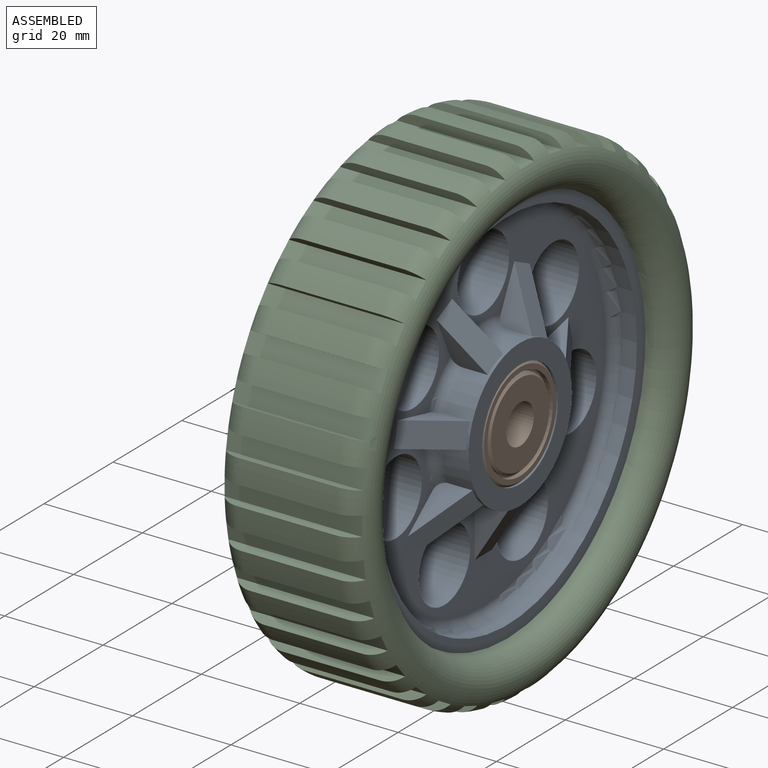
[diagram: assembled view]
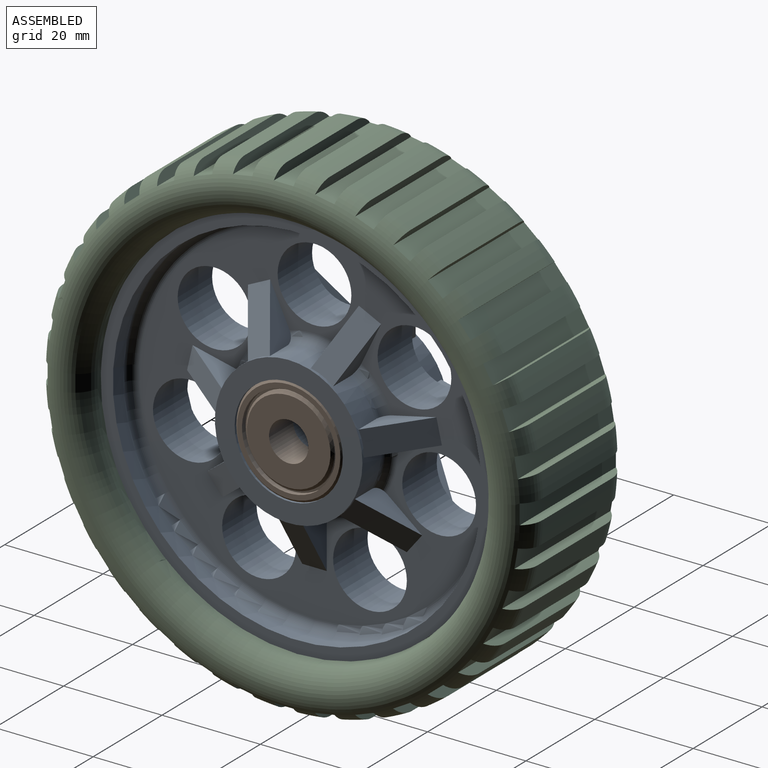
[diagram: assembled view, second angle]
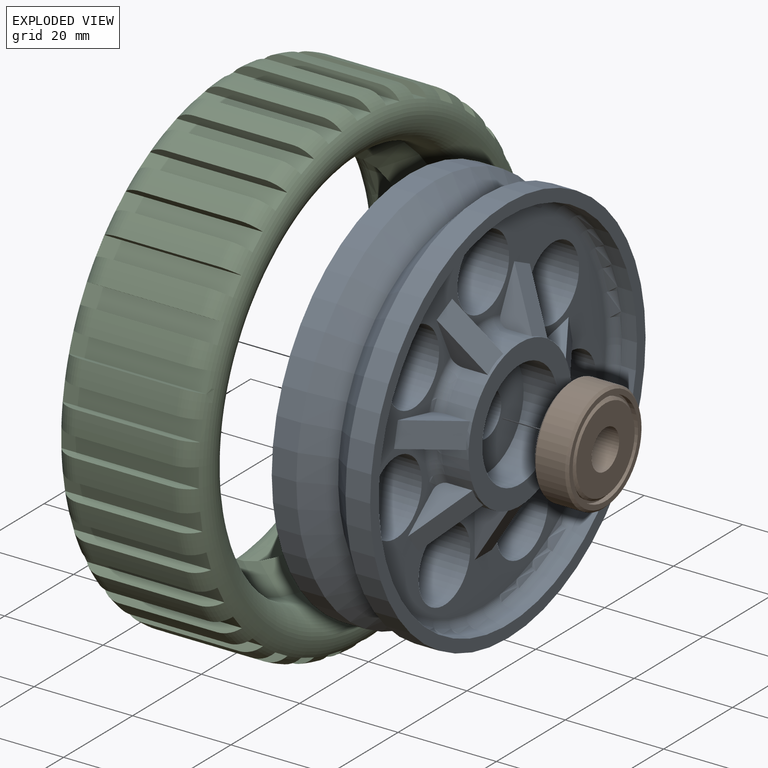
[diagram: exploded view]
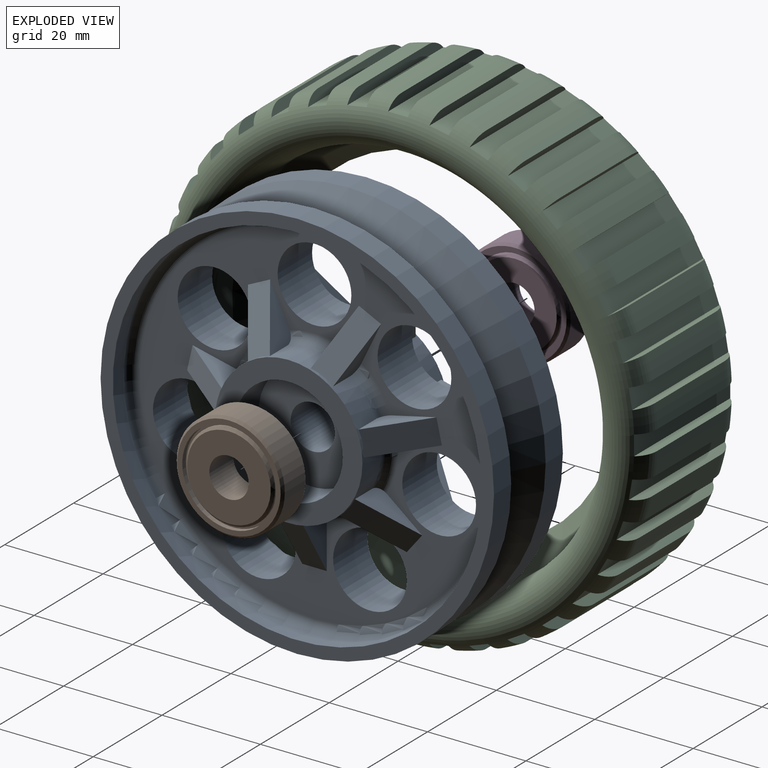
[diagram: exploded view, second angle]
ASSEMBLY  parts=4 mates=3
PART A: 84 faces, bbox 25x81.2x81.2 mm
  f0: plane 71x71mm, normal (-1,0,0), area 1497.1mm2, adj f3,f4,f5,f6,f7,f8,f9,f47
  f1: plane 71x71mm, normal (1,0,0), area 1497.1mm2, adj f3,f4,f5,f6,f7,f8,f9,f26
  f2: cylinder r=40mm len=80mm, axis (-1,0,0), area 1256.6mm2, adj f23,f24
  f3: cylinder r=7.5mm len=15mm, axis (-1,0,0), area 471.2mm2, adj f0,f1
  f4: cylinder r=7.5mm len=15mm, axis (-1,0,0), area 471.2mm2, adj f0,f1
  f5: cylinder r=7.5mm len=15mm, axis (-1,0,0), area 471.2mm2, adj f0,f1
  f6: cylinder r=7.5mm len=15mm, axis (-1,0,0), area 471.2mm2, adj f0,f1
  f7: cylinder r=7.5mm len=15mm, axis (-1,0,0), area 471.2mm2, adj f0,f1
  f8: cylinder r=7.5mm len=15mm, axis (-1,0,0), area 471.2mm2, adj f0,f1
  f9: cylinder r=7.5mm len=15mm, axis (-1,0,0), area 471.2mm2, adj f0,f1
  f10: cylinder r=15mm len=30mm, axis (-1,0,0), area 345.4mm2, adj f14,f26,f27,f28,f29,f30,f31,f32
  f11: cylinder r=11mm len=22mm, axis (-1,0,0), area 483.8mm2, adj f15,f18
  f12: cylinder r=11mm len=22mm, axis (-1,0,0), area 483.8mm2, adj f14,f17
  f13: cylinder r=15mm len=30mm, axis (-1,0,0), area 345.4mm2, adj f15,f47,f48,f49,f50,f51,f52,f53
  f14: plane 30x30mm, normal (1,0,0), area 326.7mm2, adj f10,f12
  f15: plane 30x30mm, normal (-1,0,0), area 326.7mm2, adj f11,f13
  f16: cylinder r=4.5mm len=11mm, axis (-1,0,0), area 311mm2, adj f17,f18
  f17: plane 22x22mm, normal (1,0,0), area 316.5mm2, adj f12,f16
  f18: plane 22x22mm, normal (-1,0,0), area 316.5mm2, adj f11,f16
  f19: cylinder r=37.5mm len=75mm, axis (-1,0,0), area 706.9mm2, adj f22,f80
  f20: cylinder r=37.5mm len=75mm, axis (-1,0,0), area 706.9mm2, adj f23,f82
  f21: cylinder r=40mm len=80mm, axis (-1,0,0), area 1256.6mm2, adj f22,f25
  f22: plane 80x80mm, normal (1,0,0), area 608.7mm2, adj f19,f21
  f23: plane 80x80mm, normal (-1,0,0), area 608.7mm2, adj f2,f20
  f24: cone r=35mm half-angle=45deg, axis (-1,0,0), area 1666.1mm2, adj f2,f25
  f25: cone r=40mm half-angle=45deg, axis (1,0,0), area 1666.1mm2, adj f21,f24
  f26: plane 11.21x7.01mm, normal (0.85,0,-0.53), area 65.3mm2, adj f1,f10,f27,f28
  f27: plane 11.21x7.01mm, normal (0,-1,0), area 38.4mm2, adj f1,f10,f26,f74
  f28: plane 11.21x7.01mm, normal (0,1,0), area 38.4mm2, adj f1,f10,f26,f83
  f29: plane 11.88x10.9mm, normal (0.85,0.41,-0.33), area 65.3mm2, adj f1,f10,f30,f31
  f30: plane 8.76x7.01mm, normal (0,-0.62,-0.78), area 38.4mm2, adj f1,f10,f29,f83
  f31: plane 8.76x7.01mm, normal (0,0.62,0.78), area 38.4mm2, adj f1,f10,f29,f79
  f32: plane 12.04x7.37mm, normal (0.85,0.52,0.12), area 65.3mm2, adj f1,f10,f33,f34
  f33: plane 10.93x7.01mm, normal (0,0.22,-0.97), area 38.4mm2, adj f1,f10,f32,f79
  f34: plane 10.93x7.01mm, normal (0,-0.22,0.97), area 38.4mm2, adj f1,f10,f32,f78
  f35: plane 12.27x9.37mm, normal (0.85,0.23,0.48), area 65.3mm2, adj f1,f10,f36,f37
  f36: plane 10.1x7.01mm, normal (0,0.9,-0.43), area 38.4mm2, adj f1,f10,f35,f78
  f37: plane 10.1x7.01mm, normal (0,-0.9,0.43), area 38.4mm2, adj f1,f10,f35,f77
  f38: plane 12.27x9.37mm, normal (0.85,-0.23,0.48), area 65.3mm2, adj f1,f10,f39,f40
  f39: plane 10.1x7.01mm, normal (0,0.9,0.43), area 38.4mm2, adj f1,f10,f38,f77
  f40: plane 10.1x7.01mm, normal (0,-0.9,-0.43), area 38.4mm2, adj f1,f10,f38,f76
  f41: plane 12.04x7.37mm, normal (0.85,-0.52,0.12), area 65.3mm2, adj f1,f10,f42,f43
  f42: plane 10.93x7.01mm, normal (0,0.22,0.97), area 38.4mm2, adj f1,f10,f41,f76
  f43: plane 10.93x7.01mm, normal (0,-0.22,-0.97), area 38.4mm2, adj f1,f10,f41,f75
  f44: plane 11.88x10.9mm, normal (0.85,-0.41,-0.33), area 65.3mm2, adj f1,f10,f45,f46
  f45: plane 8.76x7.01mm, normal (0,-0.62,0.78), area 38.4mm2, adj f1,f10,f44,f75
  f46: plane 8.76x7.01mm, normal (0,0.62,-0.78), area 38.4mm2, adj f1,f10,f44,f74
  f47: plane 11.21x7.01mm, normal (-0.85,0,-0.53), area 65.3mm2, adj f0,f13,f48,f49
  f48: plane 11.21x7.01mm, normal (0,-1,0), area 38.4mm2, adj f0,f13,f47,f68
  f49: plane 11.21x7.01mm, normal (0,1,0), area 38.4mm2, adj f0,f13,f47,f81
  f50: plane 11.88x10.9mm, normal (-0.85,0.41,-0.33), area 65.3mm2, adj f0,f13,f51,f52
  f51: plane 8.76x7.01mm, normal (0,-0.62,-0.78), area 38.4mm2, adj f0,f13,f50,f81
  f52: plane 8.76x7.01mm, normal (0,0.62,0.78), area 38.4mm2, adj f0,f13,f50,f73
  f53: plane 12.04x7.37mm, normal (-0.85,0.52,0.12), area 65.3mm2, adj f0,f13,f54,f55
  f54: plane 10.93x7.01mm, normal (0,0.22,-0.97), area 38.4mm2, adj f0,f13,f53,f73
  f55: plane 10.93x7.01mm, normal (0,-0.22,0.97), area 38.4mm2, adj f0,f13,f53,f72
  f56: plane 12.27x9.37mm, normal (-0.85,0.23,0.48), area 65.3mm2, adj f0,f13,f57,f58
  f57: plane 10.1x7.01mm, normal (0,0.9,-0.43), area 38.4mm2, adj f0,f13,f56,f72
  f58: plane 10.1x7.01mm, normal (0,-0.9,0.43), area 38.4mm2, adj f0,f13,f56,f71
  f59: plane 12.27x9.37mm, normal (-0.85,-0.23,0.48), area 65.3mm2, adj f0,f13,f60,f61
  f60: plane 10.1x7.01mm, normal (0,0.9,0.43), area 38.4mm2, adj f0,f13,f59,f71
  f61: plane 10.1x7.01mm, normal (0,-0.9,-0.43), area 38.4mm2, adj f0,f13,f59,f70
  f62: plane 12.04x7.37mm, normal (-0.85,-0.52,0.12), area 65.3mm2, adj f0,f13,f63,f64
  f63: plane 10.93x7.01mm, normal (0,0.22,0.97), area 38.4mm2, adj f0,f13,f62,f70
  f64: plane 10.93x7.01mm, normal (0,-0.22,-0.97), area 38.4mm2, adj f0,f13,f62,f69
  f65: plane 11.88x10.9mm, normal (-0.85,-0.41,-0.33), area 65.3mm2, adj f0,f13,f66,f67
  f66: plane 8.76x7.01mm, normal (0,-0.62,0.78), area 38.4mm2, adj f0,f13,f65,f69
  f67: plane 8.76x7.01mm, normal (0,0.62,-0.78), area 38.4mm2, adj f0,f13,f65,f68
  f68: torus R=17mm, axis (1,0,0), area 28.6mm2, adj f0,f13,f48,f67
  f69: torus R=17mm, axis (1,0,0), area 28.6mm2, adj f0,f13,f64,f66
  f70: torus R=17mm, axis (1,0,0), area 28.6mm2, adj f0,f13,f61,f63
  f71: torus R=17mm, axis (1,0,0), area 28.6mm2, adj f0,f13,f58,f60
  f72: torus R=17mm, axis (1,0,0), area 28.6mm2, adj f0,f13,f55,f57
  f73: torus R=17mm, axis (1,0,0), area 28.6mm2, adj f0,f13,f52,f54
  f74: torus R=17mm, axis (1,0,0), area 28.6mm2, adj f1,f10,f27,f46
  f75: torus R=17mm, axis (1,0,0), area 28.6mm2, adj f1,f10,f43,f45
  f76: torus R=17mm, axis (1,0,0), area 28.6mm2, adj f1,f10,f40,f42
  f77: torus R=17mm, axis (1,0,0), area 28.6mm2, adj f1,f10,f37,f39
  f78: torus R=17mm, axis (1,0,0), area 28.6mm2, adj f1,f10,f34,f36
  f79: torus R=17mm, axis (1,0,0), area 28.6mm2, adj f1,f10,f31,f33
  f80: torus R=35.5mm, axis (1,0,0), area 725.9mm2, adj f1,f19
  f81: torus R=17mm, axis (1,0,0), area 28.6mm2, adj f0,f13,f49,f51
  f82: torus R=35.5mm, axis (1,0,0), area 725.9mm2, adj f0,f20
  f83: torus R=17mm, axis (1,0,0), area 28.6mm2, adj f1,f10,f28,f30
PART B: 16 faces, bbox 22x22x7 mm
  f0: cone r=8.5mm half-angle=45deg, axis (0,0,1), area 38.9mm2, adj f1,f15
  f1: plane 17x17mm, normal (0,0,-1), area 176.7mm2, adj f0,f2
  f2: cylinder r=4mm len=8mm, axis (0,0,-1), area 175.9mm2, adj f1,f3
  f3: plane 17x17mm, normal (0,0,1), area 176.7mm2, adj f2,f4
  f4: cone r=8.5mm half-angle=45deg, axis (0,0,-1), area 38.9mm2, adj f3,f5
  f5: cylinder r=9mm len=18mm, axis (0,0,-1), area 28.3mm2, adj f4,f6
  f6: plane 19x19mm, normal (0,0,1), area 29.1mm2, adj f5,f7
  f7: cylinder r=9.5mm len=19mm, axis (0,0,-1), area 59.7mm2, adj f6,f8
  f8: plane 21x21mm, normal (0,0,1), area 62.8mm2, adj f7,f9
  f9: cone r=10.5mm half-angle=45deg, axis (0,0,-1), area 47.8mm2, adj f8,f10
  f10: cylinder r=11mm len=22mm, axis (0,0,-1), area 414.7mm2, adj f9,f11
  f11: cone r=10.5mm half-angle=45deg, axis (0,0,1), area 47.8mm2, adj f10,f12
  f12: plane 21x21mm, normal (0,0,-1), area 62.8mm2, adj f11,f13
  f13: cylinder r=9.5mm len=19mm, axis (0,0,-1), area 59.7mm2, adj f12,f14
  f14: plane 19x19mm, normal (0,0,-1), area 29.1mm2, adj f13,f15
  f15: cylinder r=9mm len=18mm, axis (0,0,-1), area 28.3mm2, adj f0,f14
PART C: 150 faces, bbox 30.1x108.3x108.3 mm
  f0: torus R=45mm, axis (1,0,0), area 3776.6mm2, adj f1,f2,f3,f4,f5,f6,f7,f8
  f1: cylinder r=50mm len=20mm, axis (1,0,0), area 94.5mm2, adj f0,f37,f144,f149
  f2: cylinder r=50mm len=20mm, axis (1,0,0), area 94.5mm2, adj f0,f37,f141,f146
  f3: cylinder r=50mm len=20mm, axis (1,0,0), area 94.5mm2, adj f0,f37,f138,f143
  f4: cylinder r=50mm len=20mm, axis (1,0,0), area 94.5mm2, adj f0,f37,f135,f140
  f5: cylinder r=50mm len=20mm, axis (1,0,0), area 94.5mm2, adj f0,f37,f132,f137
  f6: cylinder r=50mm len=20mm, axis (1,0,0), area 94.5mm2, adj f0,f37,f129,f134
  f7: cylinder r=50mm len=20mm, axis (1,0,0), area 94.5mm2, adj f0,f37,f126,f131
  f8: cylinder r=50mm len=20mm, axis (1,0,0), area 94.5mm2, adj f0,f37,f123,f128
  f9: cylinder r=50mm len=20mm, axis (1,0,0), area 94.5mm2, adj f0,f37,f120,f125
  f10: cylinder r=50mm len=20mm, axis (1,0,0), area 94.5mm2, adj f0,f37,f117,f122
  f11: cylinder r=50mm len=20mm, axis (1,0,0), area 94.5mm2, adj f0,f37,f114,f119
  f12: cylinder r=50mm len=20mm, axis (1,0,0), area 94.5mm2, adj f0,f37,f111,f116
  f13: cylinder r=50mm len=20mm, axis (1,0,0), area 94.5mm2, adj f0,f37,f108,f113
  f14: cylinder r=50mm len=20mm, axis (1,0,0), area 94.5mm2, adj f0,f37,f105,f110
  f15: cylinder r=50mm len=20mm, axis (1,0,0), area 94.5mm2, adj f0,f37,f102,f107
  f16: cylinder r=50mm len=20mm, axis (1,0,0), area 94.5mm2, adj f0,f37,f99,f104
  f17: cylinder r=50mm len=20mm, axis (1,0,0), area 94.5mm2, adj f0,f37,f96,f101
  f18: cylinder r=50mm len=20mm, axis (1,0,0), area 94.5mm2, adj f0,f37,f93,f98
  f19: cylinder r=50mm len=20mm, axis (1,0,0), area 94.5mm2, adj f0,f37,f90,f95
  f20: cylinder r=50mm len=20mm, axis (1,0,0), area 94.5mm2, adj f0,f37,f87,f92
  f21: cylinder r=50mm len=20mm, axis (1,0,0), area 94.5mm2, adj f0,f37,f84,f89
  f22: cylinder r=50mm len=20mm, axis (1,0,0), area 94.5mm2, adj f0,f37,f81,f86
  f23: cylinder r=50mm len=20mm, axis (1,0,0), area 94.5mm2, adj f0,f37,f78,f83
  f24: cylinder r=50mm len=20mm, axis (1,0,0), area 94.5mm2, adj f0,f37,f75,f80
  f25: cylinder r=50mm len=20mm, axis (1,0,0), area 94.5mm2, adj f0,f37,f72,f77
  f26: cylinder r=50mm len=20mm, axis (1,0,0), area 94.5mm2, adj f0,f37,f69,f74
  f27: cylinder r=50mm len=20mm, axis (1,0,0), area 94.5mm2, adj f0,f37,f66,f71
  f28: cylinder r=50mm len=20mm, axis (1,0,0), area 94.5mm2, adj f0,f37,f63,f68
  f29: cylinder r=50mm len=20mm, axis (1,0,0), area 94.5mm2, adj f0,f37,f60,f65
  f30: cylinder r=50mm len=20mm, axis (1,0,0), area 94.5mm2, adj f0,f37,f57,f62
  f31: cylinder r=50mm len=20mm, axis (1,0,0), area 94.5mm2, adj f0,f37,f54,f59
  f32: cylinder r=50mm len=20mm, axis (1,0,0), area 94.5mm2, adj f0,f37,f44,f56
  f33: cylinder r=50mm len=20mm, axis (1,0,0), area 94.5mm2, adj f0,f37,f53,f147
  f34: cylinder r=50mm len=20mm, axis (1,0,0), area 94.5mm2, adj f0,f37,f50,f51
  f35: cylinder r=50mm len=20mm, axis (1,0,0), area 94.5mm2, adj f0,f37,f47,f48
  f36: cylinder r=50mm len=20mm, axis (1,0,0), area 94.5mm2, adj f0,f37,f43,f45
  f37: torus R=45mm, axis (1,0,0), area 3776.6mm2, adj f1,f2,f3,f4,f5,f6,f7,f8
  f38: cylinder r=40mm len=80mm, axis (1,0,0), area 1256.6mm2, adj f37,f39
  f39: cone r=35mm half-angle=45deg, axis (-1,0,0), area 1666.1mm2, adj f38,f40
  f40: cone r=40mm half-angle=45deg, axis (1,0,0), area 1666.1mm2, adj f39,f41
  f41: cylinder r=40mm len=80mm, axis (1,0,0), area 1256.6mm2, adj f0,f40
  f42: plane 28.11x4.11mm, normal (0,0,1), area 111.9mm2, adj f0,f37,f43,f44
  f43: plane 27.98x2.01mm, normal (0,-1,0), area 50.1mm2, adj f0,f36,f37,f42
  f44: plane 27.98x2.01mm, normal (0,1,0), area 50.1mm2, adj f0,f32,f37,f42
  f45: plane 27.98x1.97mm, normal (0,0.98,-0.17), area 50.1mm2, adj f0,f36,f37,f46
  f46: plane 28.1x4.04mm, normal (0,0.17,0.98), area 111.9mm2, adj f0,f37,f45,f47
  f47: plane 27.98x1.97mm, normal (0,-0.98,0.17), area 50.1mm2, adj f0,f35,f37,f46
  f48: plane 27.98x1.88mm, normal (0,0.94,-0.34), area 50.1mm2, adj f0,f35,f37,f49
  f49: plane 28.1x3.86mm, normal (0,0.34,0.94), area 111.9mm2, adj f0,f37,f48,f50
  f50: plane 27.98x1.88mm, normal (0,-0.94,0.34), area 50.1mm2, adj f0,f34,f37,f49
  f51: plane 27.98x1.74mm, normal (0,0.87,-0.5), area 50.1mm2, adj f0,f34,f37,f52
  f52: plane 28.1x3.57mm, normal (0,0.5,0.87), area 111.9mm2, adj f0,f37,f51,f53
  f53: plane 27.98x1.74mm, normal (0,-0.87,0.5), area 50.1mm2, adj f0,f33,f37,f52
  f54: plane 27.98x1.97mm, normal (0,0.98,0.17), area 50.1mm2, adj f0,f31,f37,f55
  f55: plane 28.1x4.04mm, normal (0,-0.17,0.98), area 111.9mm2, adj f0,f37,f54,f56
  f56: plane 27.98x1.97mm, normal (0,-0.98,-0.17), area 50.1mm2, adj f0,f32,f37,f55
  f57: plane 27.98x1.88mm, normal (0,0.94,0.34), area 50.1mm2, adj f0,f30,f37,f58
  f58: plane 28.1x3.86mm, normal (0,-0.34,0.94), area 111.9mm2, adj f0,f37,f57,f59
  f59: plane 27.98x1.88mm, normal (0,-0.94,-0.34), area 50.1mm2, adj f0,f31,f37,f58
  f60: plane 27.98x1.74mm, normal (0,0.87,0.5), area 50.1mm2, adj f0,f29,f37,f61
  f61: plane 28.1x3.57mm, normal (0,-0.5,0.87), area 111.9mm2, adj f0,f37,f60,f62
  f62: plane 27.98x1.74mm, normal (0,-0.87,-0.5), area 50.1mm2, adj f0,f30,f37,f61
  f63: plane 27.98x1.54mm, normal (0,0.77,0.64), area 50.1mm2, adj f0,f28,f37,f64
  f64: plane 28.1x3.17mm, normal (0,-0.64,0.77), area 111.9mm2, adj f0,f37,f63,f65
  f65: plane 27.98x1.54mm, normal (0,-0.77,-0.64), area 50.1mm2, adj f0,f29,f37,f64
  f66: plane 27.98x1.54mm, normal (0,0.64,0.77), area 50.1mm2, adj f0,f27,f37,f67
  f67: plane 28.1x3.17mm, normal (0,-0.77,0.64), area 111.9mm2, adj f0,f37,f66,f68
  f68: plane 27.98x1.54mm, normal (0,-0.64,-0.77), area 50.1mm2, adj f0,f28,f37,f67
  f69: plane 27.98x1.74mm, normal (0,0.5,0.87), area 50.1mm2, adj f0,f26,f37,f70
  f70: plane 28.1x3.57mm, normal (0,-0.87,0.5), area 111.9mm2, adj f0,f37,f69,f71
  f71: plane 27.98x1.74mm, normal (0,-0.5,-0.87), area 50.1mm2, adj f0,f27,f37,f70
  f72: plane 27.98x1.88mm, normal (0,0.34,0.94), area 50.1mm2, adj f0,f25,f37,f73
  f73: plane 28.1x3.86mm, normal (0,-0.94,0.34), area 111.9mm2, adj f0,f37,f72,f74
  f74: plane 27.98x1.88mm, normal (0,-0.34,-0.94), area 50.1mm2, adj f0,f26,f37,f73
  f75: plane 27.98x1.97mm, normal (0,0.17,0.98), area 50.1mm2, adj f0,f24,f37,f76
  f76: plane 28.1x4.04mm, normal (0,-0.98,0.17), area 111.9mm2, adj f0,f37,f75,f77
  f77: plane 27.98x1.97mm, normal (0,-0.17,-0.98), area 50.1mm2, adj f0,f25,f37,f76
  f78: plane 27.98x2.01mm, normal (0,0,1), area 50.1mm2, adj f0,f23,f37,f79
  f79: plane 28.11x4.11mm, normal (0,-1,0), area 111.9mm2, adj f0,f37,f78,f80
  f80: plane 27.98x2.01mm, normal (0,0,-1), area 50.1mm2, adj f0,f24,f37,f79
  f81: plane 27.98x1.97mm, normal (0,-0.17,0.98), area 50.1mm2, adj f0,f22,f37,f82
  f82: plane 28.1x4.04mm, normal (0,-0.98,-0.17), area 111.9mm2, adj f0,f37,f81,f83
  f83: plane 27.98x1.97mm, normal (0,0.17,-0.98), area 50.1mm2, adj f0,f23,f37,f82
  f84: plane 27.98x1.88mm, normal (0,-0.34,0.94), area 50.1mm2, adj f0,f21,f37,f85
  f85: plane 28.1x3.86mm, normal (0,-0.94,-0.34), area 111.9mm2, adj f0,f37,f84,f86
  f86: plane 27.98x1.88mm, normal (0,0.34,-0.94), area 50.1mm2, adj f0,f22,f37,f85
  f87: plane 27.98x1.74mm, normal (0,-0.5,0.87), area 50.1mm2, adj f0,f20,f37,f88
  f88: plane 28.1x3.57mm, normal (0,-0.87,-0.5), area 111.9mm2, adj f0,f37,f87,f89
  f89: plane 27.98x1.74mm, normal (0,0.5,-0.87), area 50.1mm2, adj f0,f21,f37,f88
  f90: plane 27.98x1.54mm, normal (0,-0.64,0.77), area 50.1mm2, adj f0,f19,f37,f91
  f91: plane 28.1x3.17mm, normal (0,-0.77,-0.64), area 111.9mm2, adj f0,f37,f90,f92
  f92: plane 27.98x1.54mm, normal (0,0.64,-0.77), area 50.1mm2, adj f0,f20,f37,f91
  f93: plane 27.98x1.54mm, normal (0,-0.77,0.64), area 50.1mm2, adj f0,f18,f37,f94
  f94: plane 28.1x3.17mm, normal (0,-0.64,-0.77), area 111.9mm2, adj f0,f37,f93,f95
  f95: plane 27.98x1.54mm, normal (0,0.77,-0.64), area 50.1mm2, adj f0,f19,f37,f94
  f96: plane 27.98x1.74mm, normal (0,-0.87,0.5), area 50.1mm2, adj f0,f17,f37,f97
  f97: plane 28.1x3.57mm, normal (0,-0.5,-0.87), area 111.9mm2, adj f0,f37,f96,f98
  f98: plane 27.98x1.74mm, normal (0,0.87,-0.5), area 50.1mm2, adj f0,f18,f37,f97
  f99: plane 27.98x1.88mm, normal (0,-0.94,0.34), area 50.1mm2, adj f0,f16,f37,f100
  f100: plane 28.1x3.86mm, normal (0,-0.34,-0.94), area 111.9mm2, adj f0,f37,f99,f101
  f101: plane 27.98x1.88mm, normal (0,0.94,-0.34), area 50.1mm2, adj f0,f17,f37,f100
  f102: plane 27.98x1.97mm, normal (0,-0.98,0.17), area 50.1mm2, adj f0,f15,f37,f103
  f103: plane 28.1x4.04mm, normal (0,-0.17,-0.98), area 111.9mm2, adj f0,f37,f102,f104
  f104: plane 27.98x1.97mm, normal (0,0.98,-0.17), area 50.1mm2, adj f0,f16,f37,f103
  f105: plane 27.98x2.01mm, normal (0,-1,0), area 50.1mm2, adj f0,f14,f37,f106
  f106: plane 28.03x4.03mm, normal (0,0,-1), area 111.9mm2, adj f0,f37,f105,f107
  f107: plane 27.98x2.01mm, normal (0,1,0), area 50.1mm2, adj f0,f15,f37,f106
  f108: plane 27.98x1.97mm, normal (0,-0.98,-0.17), area 50.1mm2, adj f0,f13,f37,f109
  f109: plane 28.1x4.04mm, normal (0,0.17,-0.98), area 111.9mm2, adj f0,f37,f108,f110
  f110: plane 27.98x1.97mm, normal (0,0.98,0.17), area 50.1mm2, adj f0,f14,f37,f109
  f111: plane 27.98x1.88mm, normal (0,-0.94,-0.34), area 50.1mm2, adj f0,f12,f37,f112
  f112: plane 28.1x3.86mm, normal (0,0.34,-0.94), area 111.9mm2, adj f0,f37,f111,f113
  f113: plane 27.98x1.88mm, normal (0,0.94,0.34), area 50.1mm2, adj f0,f13,f37,f112
  f114: plane 27.98x1.74mm, normal (0,-0.87,-0.5), area 50.1mm2, adj f0,f11,f37,f115
  f115: plane 28.1x3.57mm, normal (0,0.5,-0.87), area 111.9mm2, adj f0,f37,f114,f116
  f116: plane 27.98x1.74mm, normal (0,0.87,0.5), area 50.1mm2, adj f0,f12,f37,f115
  f117: plane 27.98x1.54mm, normal (0,-0.77,-0.64), area 50.1mm2, adj f0,f10,f37,f118
  f118: plane 28.1x3.17mm, normal (0,0.64,-0.77), area 111.9mm2, adj f0,f37,f117,f119
  f119: plane 27.98x1.54mm, normal (0,0.77,0.64), area 50.1mm2, adj f0,f11,f37,f118
  f120: plane 27.98x1.54mm, normal (0,-0.64,-0.77), area 50.1mm2, adj f0,f9,f37,f121
  f121: plane 28.1x3.17mm, normal (0,0.77,-0.64), area 111.9mm2, adj f0,f37,f120,f122
  f122: plane 27.98x1.54mm, normal (0,0.64,0.77), area 50.1mm2, adj f0,f10,f37,f121
  f123: plane 27.98x1.74mm, normal (0,-0.5,-0.87), area 50.1mm2, adj f0,f8,f37,f124
  f124: plane 28.1x3.57mm, normal (0,0.87,-0.5), area 111.9mm2, adj f0,f37,f123,f125
  f125: plane 27.98x1.74mm, normal (0,0.5,0.87), area 50.1mm2, adj f0,f9,f37,f124
  f126: plane 27.98x1.88mm, normal (0,-0.34,-0.94), area 50.1mm2, adj f0,f7,f37,f127
  f127: plane 28.1x3.86mm, normal (0,0.94,-0.34), area 111.9mm2, adj f0,f37,f126,f128
  f128: plane 27.98x1.88mm, normal (0,0.34,0.94), area 50.1mm2, adj f0,f8,f37,f127
  f129: plane 27.98x1.97mm, normal (0,-0.17,-0.98), area 50.1mm2, adj f0,f6,f37,f130
  f130: plane 28.1x4.04mm, normal (0,0.98,-0.17), area 111.9mm2, adj f0,f37,f129,f131
  f131: plane 27.98x1.97mm, normal (0,0.17,0.98), area 50.1mm2, adj f0,f7,f37,f130
  f132: plane 27.98x2.01mm, normal (0,0,-1), area 50.1mm2, adj f0,f5,f37,f133
  f133: plane 28.11x4.11mm, normal (0,1,0), area 111.9mm2, adj f0,f37,f132,f134
  f134: plane 27.98x2.01mm, normal (0,0,1), area 50.1mm2, adj f0,f6,f37,f133
  f135: plane 27.98x1.97mm, normal (0,0.17,-0.98), area 50.1mm2, adj f0,f4,f37,f136
  f136: plane 28.1x4.04mm, normal (0,0.98,0.17), area 111.9mm2, adj f0,f37,f135,f137
  f137: plane 27.98x1.97mm, normal (0,-0.17,0.98), area 50.1mm2, adj f0,f5,f37,f136
  f138: plane 27.98x1.88mm, normal (0,0.34,-0.94), area 50.1mm2, adj f0,f3,f37,f139
  f139: plane 28.1x3.86mm, normal (0,0.94,0.34), area 111.9mm2, adj f0,f37,f138,f140
  f140: plane 27.98x1.88mm, normal (0,-0.34,0.94), area 50.1mm2, adj f0,f4,f37,f139
  f141: plane 27.98x1.74mm, normal (0,0.5,-0.87), area 50.1mm2, adj f0,f2,f37,f142
  f142: plane 28.1x3.57mm, normal (0,0.87,0.5), area 111.9mm2, adj f0,f37,f141,f143
  f143: plane 27.98x1.74mm, normal (0,-0.5,0.87), area 50.1mm2, adj f0,f3,f37,f142
  f144: plane 27.98x1.54mm, normal (0,0.64,-0.77), area 50.1mm2, adj f0,f1,f37,f145
  f145: plane 28.1x3.17mm, normal (0,0.77,0.64), area 111.9mm2, adj f0,f37,f144,f146
  f146: plane 27.98x1.54mm, normal (0,-0.64,0.77), area 50.1mm2, adj f0,f2,f37,f145
  f147: plane 27.98x1.54mm, normal (0,0.77,-0.64), area 50.1mm2, adj f0,f33,f37,f148
  f148: plane 28.1x3.17mm, normal (0,0.64,0.77), area 111.9mm2, adj f0,f37,f147,f149
  f149: plane 27.98x1.54mm, normal (0,-0.77,0.64), area 50.1mm2, adj f0,f1,f37,f148
PART D: same geometry as B
PLACE A t=(-1.37,-20.44,48.45)mm
PLACE B rot(axis=(0.71,0,-0.71),180deg) t=(7.63,-20.44,48.45)mm
PLACE C t=(-1.37,-20.44,48.45)mm
PLACE D rot(axis=(0.71,0,0.71),180deg) t=(-10.37,-20.44,48.45)mm
MATE fastened C.f0 <-> A.f2  axis (1,0,0) through (-1.37,-20.44,48.45)mm
MATE revolute B.f0 <-> A.f2  axis (-1,0,0) through (4.13,-20.44,48.45)mm
MATE revolute D.f0 <-> A.f2  axis (1,0,0) through (-6.87,-20.44,48.45)mm
